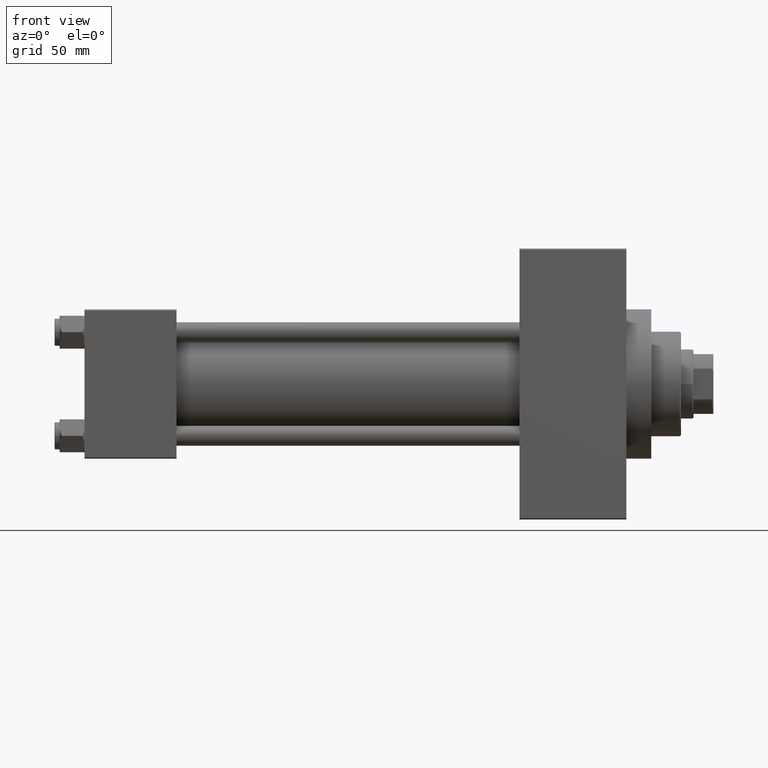
[diagram: clean part render]
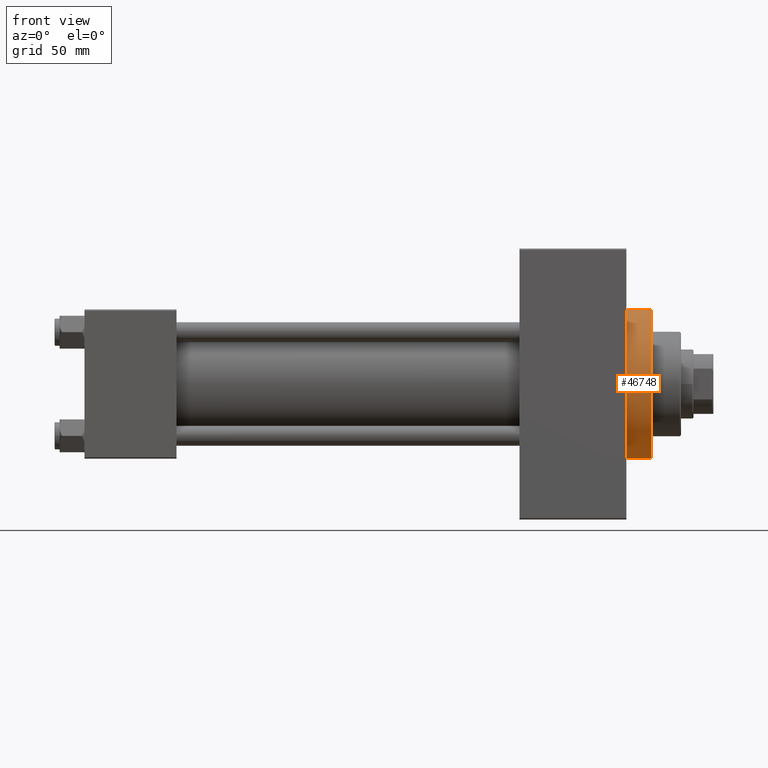
[diagram: same view with one face highlighted and labeled with its STEP entity id]
A machine part, front view. The second image highlights one B-rep face of the part: STEP entity #46748.
In plain terms, the highlighted cylindrical surface (partial cylindrical patch) has radius 30 mm, axis along (-1, -0, -0).
Its self-contained STEP definition (entity closure, byte-faithful):
#1638 = CARTESIAN_POINT ( 'NONE',  ( 218.0000000000000284, -30.00000000000000000, 0.000000000000000000 ) ) ;
#2396 = DIRECTION ( 'NONE',  ( 0.000000000000000000, 0.000000000000000000, -1.000000000000000000 ) ) ;
#2399 = DIRECTION ( 'NONE',  ( -1.000000000000000000, -0.000000000000000000, -0.000000000000000000 ) ) ;
#2832 = VERTEX_POINT ( 'NONE', #36561 ) ;
#4854 = EDGE_CURVE ( 'NONE', #30274, #18207, #25227, .T. ) ;
#8463 = CARTESIAN_POINT ( 'NONE',  ( 228.0000000000000284, 0.000000000000000000, 30.00000000000000000 ) ) ;
#9923 = CARTESIAN_POINT ( 'NONE',  ( 218.0000000000000284, 0.000000000000000000, 0.000000000000000000 ) ) ;
#11303 = AXIS2_PLACEMENT_3D ( 'NONE', #9923, #13948, #2396 ) ;
#11656 = CARTESIAN_POINT ( 'NONE',  ( 228.0000000000000284, 0.000000000000000000, 0.000000000000000000 ) ) ;
#11690 = CARTESIAN_POINT ( 'NONE',  ( 218.0000000000000284, 0.000000000000000000, 30.00000000000000000 ) ) ;
#12037 = CIRCLE ( 'NONE', #39939, 30.00000000000000000 ) ;
#13948 = DIRECTION ( 'NONE',  ( 1.000000000000000000, 0.000000000000000000, 0.000000000000000000 ) ) ;
#16149 = DIRECTION ( 'NONE',  ( 1.000000000000000000, 0.000000000000000000, 0.000000000000000000 ) ) ;
#16284 = LINE ( 'NONE', #46630, #43268 ) ;
#18207 = VERTEX_POINT ( 'NONE', #11690 ) ;
#18338 = VERTEX_POINT ( 'NONE', #1638 ) ;
#18714 = EDGE_CURVE ( 'NONE', #18338, #2832, #12037, .T. ) ;
#19238 = CARTESIAN_POINT ( 'NONE',  ( 228.0000000000000284, 3.673940397442059178E-15, -30.00000000000000000 ) ) ;
#19911 = CARTESIAN_POINT ( 'NONE',  ( 218.0000000000000284, 0.000000000000000000, 0.000000000000000000 ) ) ;
#20363 = ORIENTED_EDGE ( 'NONE', *, *, #4854, .T. ) ;
#20903 = CIRCLE ( 'NONE', #11303, 30.00000000000000000 ) ;
#21462 = CARTESIAN_POINT ( 'NONE',  ( 228.0000000000000284, 0.000000000000000000, 30.00000000000000000 ) ) ;
#21697 = EDGE_CURVE ( 'NONE', #32695, #2832, #16284, .T. ) ;
#23916 = EDGE_CURVE ( 'NONE', #18207, #18338, #20903, .T. ) ;
#24147 = DIRECTION ( 'NONE',  ( 0.000000000000000000, 0.000000000000000000, -1.000000000000000000 ) ) ;
#25227 = LINE ( 'NONE', #21462, #29369 ) ;
#27577 = DIRECTION ( 'NONE',  ( -1.000000000000000000, -0.000000000000000000, -0.000000000000000000 ) ) ;
#28419 = ORIENTED_EDGE ( 'NONE', *, *, #42507, .F. ) ;
#28589 = FACE_OUTER_BOUND ( 'NONE', #34275, .T. ) ;
#28721 = AXIS2_PLACEMENT_3D ( 'NONE', #11656, #42514, #38496 ) ;
#29329 = CARTESIAN_POINT ( 'NONE',  ( 228.0000000000000284, 0.000000000000000000, 0.000000000000000000 ) ) ;
#29369 = VECTOR ( 'NONE', #2399, 1000.000000000000000 ) ;
#29537 = AXIS2_PLACEMENT_3D ( 'NONE', #29329, #36603, #32851 ) ;
#30274 = VERTEX_POINT ( 'NONE', #8463 ) ;
#32695 = VERTEX_POINT ( 'NONE', #19238 ) ;
#32851 = DIRECTION ( 'NONE',  ( 0.000000000000000000, 0.000000000000000000, 1.000000000000000000 ) ) ;
#34275 = EDGE_LOOP ( 'NONE', ( #42128, #28419, #20363, #38440, #36939 ) ) ;
#35021 = CIRCLE ( 'NONE', #28721, 30.00000000000000000 ) ;
#36561 = CARTESIAN_POINT ( 'NONE',  ( 218.0000000000000284, 3.673940397442059178E-15, -30.00000000000000000 ) ) ;
#36603 = DIRECTION ( 'NONE',  ( -1.000000000000000000, -0.000000000000000000, -0.000000000000000000 ) ) ;
#36939 = ORIENTED_EDGE ( 'NONE', *, *, #18714, .T. ) ;
#38440 = ORIENTED_EDGE ( 'NONE', *, *, #23916, .T. ) ;
#38496 = DIRECTION ( 'NONE',  ( 0.000000000000000000, 0.000000000000000000, -1.000000000000000000 ) ) ;
#39939 = AXIS2_PLACEMENT_3D ( 'NONE', #19911, #16149, #24147 ) ;
#42128 = ORIENTED_EDGE ( 'NONE', *, *, #21697, .F. ) ;
#42507 = EDGE_CURVE ( 'NONE', #30274, #32695, #35021, .T. ) ;
#42514 = DIRECTION ( 'NONE',  ( 1.000000000000000000, 0.000000000000000000, 0.000000000000000000 ) ) ;
#43268 = VECTOR ( 'NONE', #27577, 1000.000000000000000 ) ;
#43883 = CYLINDRICAL_SURFACE ( 'NONE', #29537, 30.00000000000000000 ) ;
#46630 = CARTESIAN_POINT ( 'NONE',  ( 228.0000000000000284, 3.673940397442059178E-15, -30.00000000000000000 ) ) ;
#46748 = ADVANCED_FACE ( 'NONE', ( #28589 ), #43883, .T. ) ;